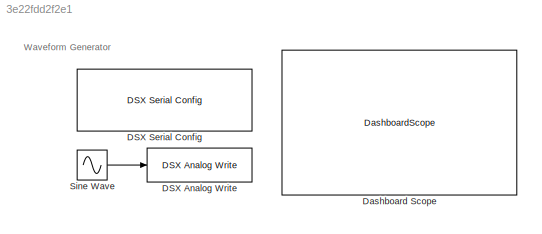
MODEL slx_3e22fdd2f2e1
KIND model
CONFIG AbsTol = auto
CONFIG EnableMultiTasking = off
CONFIG FixedStep = auto
CONFIG MaxStep = auto
CONFIG MinStep = auto
CONFIG RelTol = 1e-3
CONFIG SampleTimeConstraint = Unconstrained
CONFIG SolverName = VariableStepAuto
CONFIG StartTime = 0.0
CONFIG StopTime = inf
BLOCK [Reference] DSX Analog Write  REF=DSX_Lib/Write Blocks/DSX Analog Write
  NameLocation = top
  Ports = [1]
  SourceBlock = DSX_Lib/Write Blocks/DSX Analog Write
  SourceProductName = DSX Library
BLOCK [Reference] DSX Serial Config  REF=DSX_Lib/DSX Serial Config
  NameLocation = top
  Ports = []
  SourceBlock = DSX_Lib/DSX Serial Config
  SourceProductName = DSX Library
BLOCK [DashboardScope] Dashboard Scope
  Ymax = 1023
  Ymin = -1023
BLOCK [Sin] Sine Wave
  Amplitude = 1024
  Bias = 1024
  Frequency = 0.5
  Ports = [0, 1]
  SampleTime = 0
  Samples = 1000
ANNOTATION (root): Waveform Generator
LINE Sine Wave:1 -> DSX Analog Write:1
